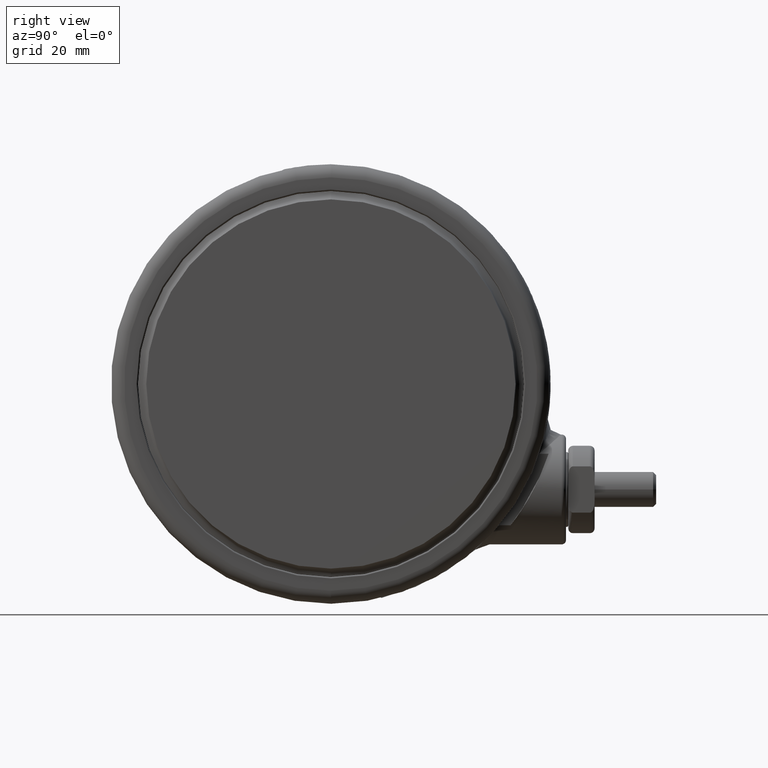
[diagram: clean part render]
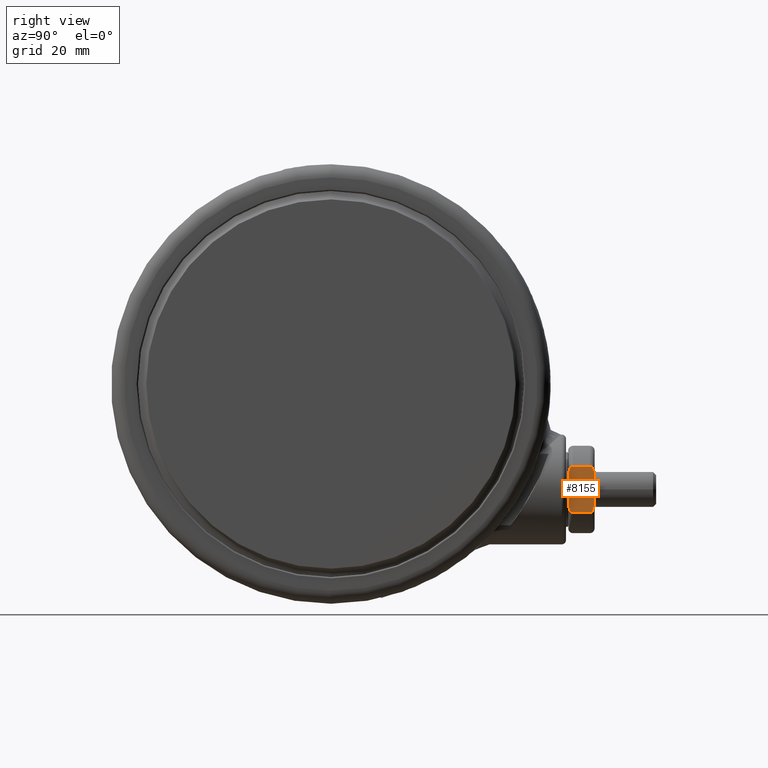
[diagram: same view with one face highlighted and labeled with its STEP entity id]
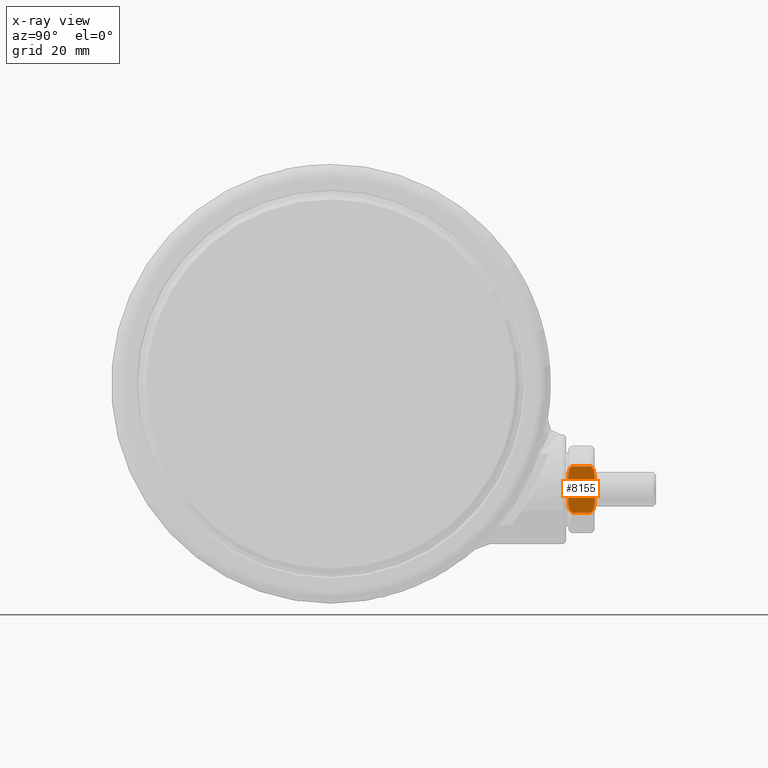
[diagram: x-ray of the same camera — body ghosted, the highlighted face saturated]
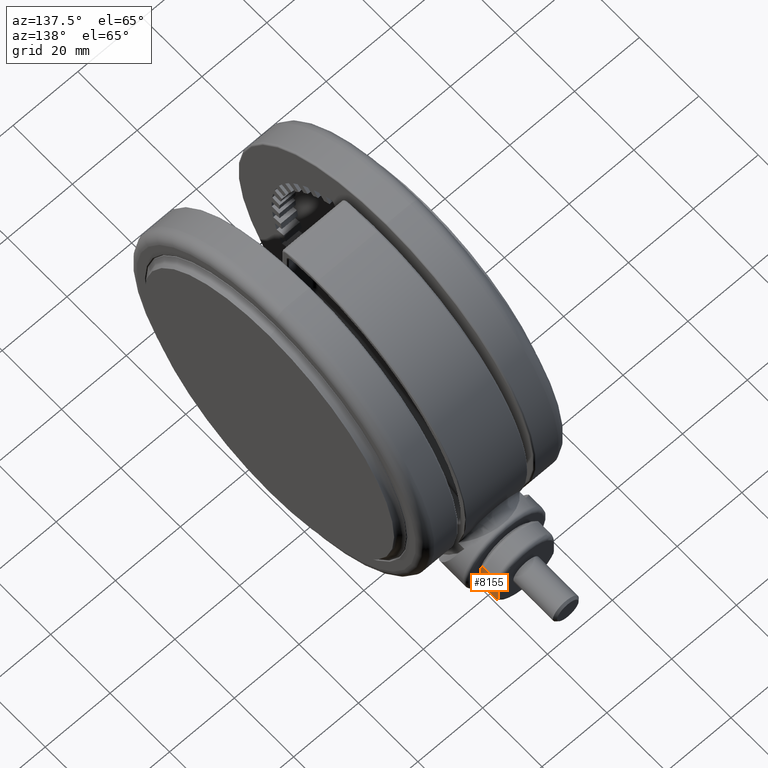
[diagram: same view with one face highlighted and labeled with its STEP entity id]
A machine part, right view. The second image highlights one B-rep face of the part: STEP entity #8155.
The next image is the same camera in x-ray: the body ghosted, the highlighted face saturated — about 0% of this face is hidden behind the body in this view.
A second angle (auxiliary view) of the same face is appended — the face is thin or edge-on in the first view.
In plain terms, the highlighted planar face has unit normal (-1, -0, 0).
Its self-contained STEP definition (entity closure, byte-faithful):
#65 = CARTESIAN_POINT ( 'NONE',  ( 29.26782687642635500, 59.03150044679937000, -15.80000000000000800 ) ) ;
#171 = CARTESIAN_POINT ( 'NONE',  ( 26.89554108775182000, 60.00000000000002800, -15.80000000000000400 ) ) ;
#812 = CARTESIAN_POINT ( 'NONE',  ( 29.07528084068841800, 54.62722577885441700, -15.80000000000000100 ) ) ;
#1003 = LINE ( 'NONE', #3309, #14286 ) ;
#1190 = CARTESIAN_POINT ( 'NONE',  ( 18.73217312357362400, 60.00000000000003600, -15.80000000000000800 ) ) ;
#1528 = LINE ( 'NONE', #21233, #19867 ) ;
#1726 = CARTESIAN_POINT ( 'NONE',  ( 19.02208122448899300, 54.53784591869184300, -15.80000000000000400 ) ) ;
#3100 = VECTOR ( 'NONE', #23571, 1000.000000000000000 ) ;
#3200 = CARTESIAN_POINT ( 'NONE',  ( 26.63818119165457400, 54.00000000000003600, -15.80000000000000800 ) ) ;
#3309 = CARTESIAN_POINT ( 'NONE',  ( 18.73217312357362400, 60.00000000000003600, -15.80000000000000800 ) ) ;
#3312 = CARTESIAN_POINT ( 'NONE',  ( 29.26782687642659300, 54.96853252411884200, -15.80000000000001100 ) ) ;
#3589 = ORIENTED_EDGE ( 'NONE', *, *, #9828, .T. ) ;
#3692 = PLANE ( 'NONE',  #21060 ) ;
#3765 = DIRECTION ( 'NONE',  ( 1.000000000000000000, 1.161330068381886000E-016, -1.224646799147352000E-016 ) ) ;
#4236 = EDGE_CURVE ( 'NONE', #5206, #29620, #5056, .T. ) ;
#4250 = CARTESIAN_POINT ( 'NONE',  ( 19.34962589899552300, 54.32924231180964400, -15.80000000000000400 ) ) ;
#4796 = FACE_OUTER_BOUND ( 'NONE', #29666, .T. ) ;
#5013 = CARTESIAN_POINT ( 'NONE',  ( 20.33594577717705600, 59.94639196558829000, -15.80000000000000800 ) ) ;
#5056 = B_SPLINE_CURVE_WITH_KNOTS ( 'NONE', 3,
 ( #7480, #65, #20033, #5076, #22550, #7582, #25077, #10099, #27583, #12607, #30064, #15125, #171, #17631 ),
 .UNSPECIFIED., .F., .F.,
 ( 4, 2, 2, 2, 2, 2, 4 ),
 ( 0.0000000000000000000, 0.0003884959165285354000, 0.0007769918330570708000, 0.001165487749585606200, 0.001553983666114141600, 0.002330975499171217300, 0.003107967332228293600 ),
 .UNSPECIFIED. ) ;
#5076 = CARTESIAN_POINT ( 'NONE',  ( 29.07454047306333000, 59.37375537376418300, -15.80000000000000400 ) ) ;
#5206 = VERTEX_POINT ( 'NONE', #21849 ) ;
#5649 = B_SPLINE_CURVE_WITH_KNOTS ( 'NONE', 3,
 ( #19086, #26642, #31636, #16672, #1726, #19185, #4250, #21713, #6742, #24220, #9231, #26740, #11777, #29223 ),
 .UNSPECIFIED., .F., .F.,
 ( 4, 2, 2, 2, 2, 2, 4 ),
 ( 0.0000000000000000000, 0.0003884959165285386000, 0.0007769918330570771900, 0.001165487749585615800, 0.001553983666114154400, 0.002330975499171236400, 0.003107967332228318300 ),
 .UNSPECIFIED. ) ;
#6207 = DIRECTION ( 'NONE',  ( 1.161330068381886000E-016, -1.000000000000000000, -4.413456915335259200E-017 ) ) ;
#6742 = CARTESIAN_POINT ( 'NONE',  ( 19.71179596220342800, 54.18899510613368900, -15.80000000000000400 ) ) ;
#6805 = EDGE_CURVE ( 'NONE', #23275, #15128, #27342, .T. ) ;
#6965 = CARTESIAN_POINT ( 'NONE',  ( 29.26782687642636600, 55.10000000000003700, -15.80000000000000800 ) ) ;
#7480 = CARTESIAN_POINT ( 'NONE',  ( 29.26782687642636200, 58.90000000000003400, -15.80000000000000800 ) ) ;
#7523 = CARTESIAN_POINT ( 'NONE',  ( 19.58164743081571800, 59.77626978432886100, -15.80000000000000800 ) ) ;
#7582 = CARTESIAN_POINT ( 'NONE',  ( 28.76470148028474600, 59.61147475378878400, -15.80000000000000800 ) ) ;
#8155 = ADVANCED_FACE ( 'NONE', ( #4796 ), #3692, .F. ) ;
#8228 = CARTESIAN_POINT ( 'NONE',  ( 27.15268964969410300, 54.00770887567938400, -15.80000000000000800 ) ) ;
#8980 = CARTESIAN_POINT ( 'NONE',  ( 26.63818119165457400, 54.00000000000003600, -15.80000000000000800 ) ) ;
#9231 = CARTESIAN_POINT ( 'NONE',  ( 20.33724858841210900, 54.05347171972840000, -15.80000000000000800 ) ) ;
#9828 = EDGE_CURVE ( 'NONE', #13424, #25617, #23043, .T. ) ;
#10031 = CARTESIAN_POINT ( 'NONE',  ( 19.02258604484569200, 59.46230101232291800, -15.80000000000000800 ) ) ;
#10099 = CARTESIAN_POINT ( 'NONE',  ( 28.41236036611224900, 59.77067842900429900, -15.80000000000001500 ) ) ;
#10737 = CARTESIAN_POINT ( 'NONE',  ( 27.66405422282292600, 54.05360803441173800, -15.80000000000000800 ) ) ;
#10836 = ORIENTED_EDGE ( 'NONE', *, *, #16463, .T. ) ;
#10863 = CARTESIAN_POINT ( 'NONE',  ( 29.26782687642636200, 60.00000000000003600, -15.80000000000000800 ) ) ;
#11216 = CARTESIAN_POINT ( 'NONE',  ( 21.36181880834541500, 54.00000000000003600, -15.80000000000000800 ) ) ;
#11312 = CARTESIAN_POINT ( 'NONE',  ( 18.73217312357362400, 55.10000000000003000, -15.80000000000000800 ) ) ;
#11777 = CARTESIAN_POINT ( 'NONE',  ( 21.10445891224817300, 54.00000000000005000, -15.80000000000001100 ) ) ;
#12426 = ORIENTED_EDGE ( 'NONE', *, *, #28600, .F. ) ;
#12442 = CARTESIAN_POINT ( 'NONE',  ( 21.10424727586531900, 60.00000000000003600, -15.80000000000001100 ) ) ;
#12549 = CARTESIAN_POINT ( 'NONE',  ( 18.77870012500810800, 59.15795326585612200, -15.80000000000000800 ) ) ;
#12607 = CARTESIAN_POINT ( 'NONE',  ( 27.91544957079377200, 59.90920059051454400, -15.80000000000001500 ) ) ;
#13248 = CARTESIAN_POINT ( 'NONE',  ( 28.41835256918427500, 54.22373021567121800, -15.80000000000000800 ) ) ;
#13424 = VERTEX_POINT ( 'NONE', #17688 ) ;
#13631 = DIRECTION ( 'NONE',  ( -1.224646799147352000E-016, 4.413456915335257900E-017, -1.000000000000000000 ) ) ;
#13638 = CARTESIAN_POINT ( 'NONE',  ( 18.73217312357362400, 60.00000000000003600, -15.80000000000000800 ) ) ;
#14286 = VECTOR ( 'NONE', #20247, 1000.000000000000000 ) ;
#15052 = CARTESIAN_POINT ( 'NONE',  ( 18.73217312357362400, 58.90000000000003400, -15.80000000000000800 ) ) ;
#15125 = CARTESIAN_POINT ( 'NONE',  ( 27.15303954897143900, 59.99224030502899300, -15.80000000000000400 ) ) ;
#15128 = VERTEX_POINT ( 'NONE', #6965 ) ;
#15760 = CARTESIAN_POINT ( 'NONE',  ( 28.97741395515430800, 54.53769898767711800, -15.80000000000000400 ) ) ;
#15774 = EDGE_CURVE ( 'NONE', #22742, #23275, #1528, .T. ) ;
#16463 = EDGE_CURVE ( 'NONE', #24784, #13424, #32262, .T. ) ;
#16672 = CARTESIAN_POINT ( 'NONE',  ( 18.92545952693666000, 54.62624462623588100, -15.80000000000000800 ) ) ;
#16879 = ORIENTED_EDGE ( 'NONE', *, *, #4236, .T. ) ;
#17631 = CARTESIAN_POINT ( 'NONE',  ( 26.63818119165457400, 60.00000000000003600, -15.80000000000000800 ) ) ;
#17688 = CARTESIAN_POINT ( 'NONE',  ( 18.73217312357362400, 58.90000000000003400, -15.80000000000000800 ) ) ;
#18269 = CARTESIAN_POINT ( 'NONE',  ( 29.22129987499188200, 54.84204673414397000, -15.80000000000000800 ) ) ;
#19086 = CARTESIAN_POINT ( 'NONE',  ( 18.73217312357362400, 55.10000000000003000, -15.80000000000000800 ) ) ;
#19185 = CARTESIAN_POINT ( 'NONE',  ( 19.23529851971524000, 54.38852524621129400, -15.80000000000000800 ) ) ;
#19634 = CARTESIAN_POINT ( 'NONE',  ( 21.36181880834541100, 60.00000000000003600, -15.80000000000000800 ) ) ;
#19867 = VECTOR ( 'NONE', #3765, 1000.000000000000000 ) ;
#19970 = CARTESIAN_POINT ( 'NONE',  ( 20.84731035030588600, 59.99229112432069400, -15.80000000000000800 ) ) ;
#20033 = CARTESIAN_POINT ( 'NONE',  ( 29.22161234199456100, 59.15760131995573100, -15.80000000000000400 ) ) ;
#20247 = DIRECTION ( 'NONE',  ( 1.000000000000000000, 1.161330068381886000E-016, -1.224646799147352000E-016 ) ) ;
#20582 = ORIENTED_EDGE ( 'NONE', *, *, #15774, .T. ) ;
#20795 = CARTESIAN_POINT ( 'NONE',  ( 29.26782687642636600, 55.10000000000003700, -15.80000000000000800 ) ) ;
#21060 = AXIS2_PLACEMENT_3D ( 'NONE', #1190, #13631, #6207 ) ;
#21233 = CARTESIAN_POINT ( 'NONE',  ( 18.73217312357362400, 54.00000000000003600, -15.80000000000000800 ) ) ;
#21713 = CARTESIAN_POINT ( 'NONE',  ( 19.58763963388775400, 54.22932157099580100, -15.80000000000000800 ) ) ;
#21849 = CARTESIAN_POINT ( 'NONE',  ( 29.26782687642636200, 58.90000000000003400, -15.80000000000000800 ) ) ;
#22485 = CARTESIAN_POINT ( 'NONE',  ( 20.07964047181428300, 59.90834723970846900, -15.80000000000000800 ) ) ;
#22550 = CARTESIAN_POINT ( 'NONE',  ( 28.97791877551098600, 59.46215408130819900, -15.80000000000000400 ) ) ;
#22742 = VERTEX_POINT ( 'NONE', #11216 ) ;
#23043 = LINE ( 'NONE', #13638, #3100 ) ;
#23089 = CARTESIAN_POINT ( 'NONE',  ( 26.89575272413466300, 54.00000000000003600, -15.80000000000001100 ) ) ;
#23275 = VERTEX_POINT ( 'NONE', #8980 ) ;
#23416 = VECTOR ( 'NONE', #28341, 1000.000000000000000 ) ;
#23571 = DIRECTION ( 'NONE',  ( 1.161330068381886000E-016, -1.000000000000000000, -4.413456915335259200E-017 ) ) ;
#24220 = CARTESIAN_POINT ( 'NONE',  ( 20.08455042920623200, 54.09079940948554800, -15.80000000000001500 ) ) ;
#24565 = EDGE_CURVE ( 'NONE', #24784, #29620, #1003, .T. ) ;
#24735 = ORIENTED_EDGE ( 'NONE', *, *, #25168, .T. ) ;
#24784 = VERTEX_POINT ( 'NONE', #19634 ) ;
#24799 = CARTESIAN_POINT ( 'NONE',  ( 21.36181880834541100, 60.00000000000003600, -15.80000000000000800 ) ) ;
#25014 = CARTESIAN_POINT ( 'NONE',  ( 19.33626403298172700, 59.68259175217173900, -15.80000000000000400 ) ) ;
#25077 = CARTESIAN_POINT ( 'NONE',  ( 28.65037410100447000, 59.67075768819042000, -15.80000000000000800 ) ) ;
#25168 = EDGE_CURVE ( 'NONE', #25617, #22742, #5649, .T. ) ;
#25617 = VERTEX_POINT ( 'NONE', #11312 ) ;
#26423 = CARTESIAN_POINT ( 'NONE',  ( 26.63818119165457400, 60.00000000000003600, -15.80000000000000800 ) ) ;
#26642 = CARTESIAN_POINT ( 'NONE',  ( 18.73217312357362700, 54.96849955320071500, -15.80000000000001500 ) ) ;
#26740 = CARTESIAN_POINT ( 'NONE',  ( 20.84696045102855400, 54.00775969497107100, -15.80000000000000800 ) ) ;
#26779 = ORIENTED_EDGE ( 'NONE', *, *, #24565, .F. ) ;
#27342 = B_SPLINE_CURVE_WITH_KNOTS ( 'NONE', 3,
 ( #3200, #23089, #8228, #10737, #28224, #13248, #30716, #15760, #812, #18269, #3312, #20795 ),
 .UNSPECIFIED., .F., .F.,
 ( 4, 2, 2, 2, 2, 4 ),
 ( 0.0000000000000000000, 0.0007701095471471806900, 0.001540219094294361400, 0.002310328641441542200, 0.002695383415015126400, 0.003080438188588710600 ),
 .UNSPECIFIED. ) ;
#27522 = CARTESIAN_POINT ( 'NONE',  ( 18.92471915931157200, 59.37277422114561200, -15.80000000000000400 ) ) ;
#27583 = CARTESIAN_POINT ( 'NONE',  ( 28.28820403779656100, 59.81100489386638900, -15.80000000000000800 ) ) ;
#28224 = CARTESIAN_POINT ( 'NONE',  ( 27.92035952818571300, 54.09165276029160900, -15.80000000000000800 ) ) ;
#28341 = DIRECTION ( 'NONE',  ( 1.161330068381886000E-016, -1.000000000000000000, -4.413456915335259200E-017 ) ) ;
#28600 = EDGE_CURVE ( 'NONE', #5206, #15128, #30829, .T. ) ;
#29223 = CARTESIAN_POINT ( 'NONE',  ( 21.36181880834541500, 54.00000000000003600, -15.80000000000000800 ) ) ;
#29620 = VERTEX_POINT ( 'NONE', #26423 ) ;
#29666 = EDGE_LOOP ( 'NONE', ( #26779, #10836, #3589, #24735, #20582, #30701, #12426, #16879 ) ) ;
#30003 = CARTESIAN_POINT ( 'NONE',  ( 18.73217312357341100, 59.03146747588124300, -15.80000000000001100 ) ) ;
#30064 = CARTESIAN_POINT ( 'NONE',  ( 27.66275141158789500, 59.94652828027169300, -15.80000000000001100 ) ) ;
#30701 = ORIENTED_EDGE ( 'NONE', *, *, #6805, .T. ) ;
#30716 = CARTESIAN_POINT ( 'NONE',  ( 28.66373596701825800, 54.31740824782831100, -15.80000000000000400 ) ) ;
#30829 = LINE ( 'NONE', #10863, #23416 ) ;
#31636 = CARTESIAN_POINT ( 'NONE',  ( 18.77838765800542500, 54.84239868004431200, -15.80000000000000800 ) ) ;
#32262 = B_SPLINE_CURVE_WITH_KNOTS ( 'NONE', 3,
 ( #24799, #12442, #19970, #5013, #22485, #7523, #25014, #10031, #27522, #12549, #30003, #15052 ),
 .UNSPECIFIED., .F., .F.,
 ( 4, 2, 2, 2, 2, 4 ),
 ( 0.0000000000000000000, 0.0007701095471471730000, 0.001540219094294346000, 0.002310328641441518800, 0.002695383415015111200, 0.003080438188588704100 ),
 .UNSPECIFIED. ) ;